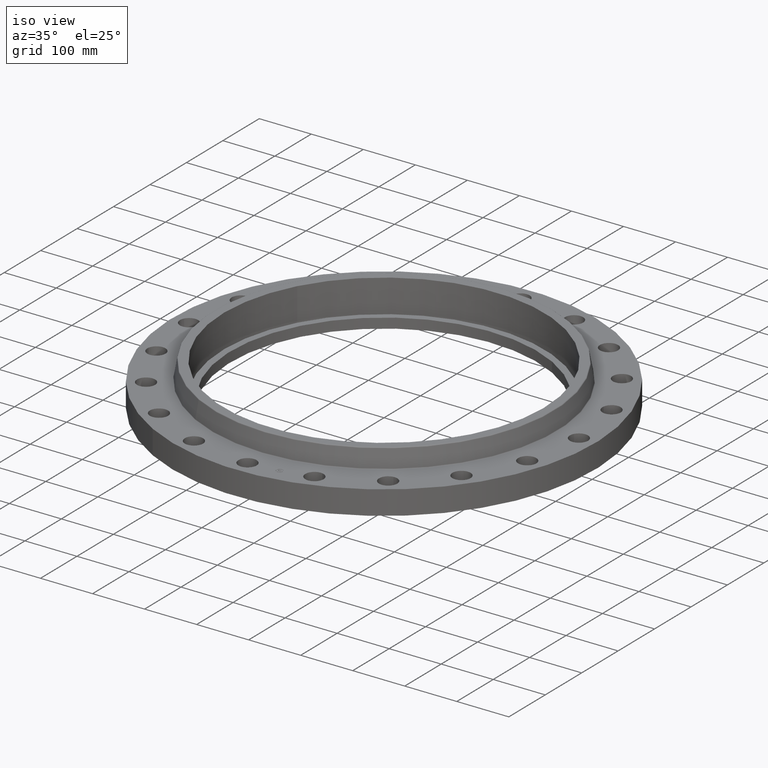
[diagram: clean part render]
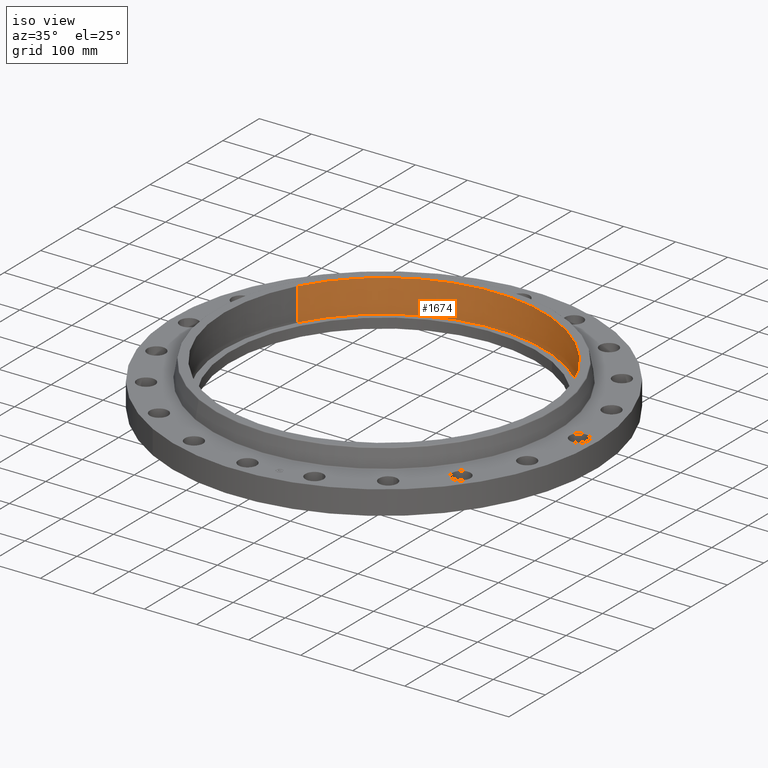
[diagram: same view with one face highlighted and labeled with its STEP entity id]
A machine part, iso view. The second image highlights one B-rep face of the part: STEP entity #1674.
In plain terms, the highlighted cylindrical surface (partial cylindrical patch) has radius 307.975 mm, axis along (0, 0, -1).
Its self-contained STEP definition (entity closure, byte-faithful):
#42=AXIS2_PLACEMENT_3D('Circle Axis2P3D',#40,#41,$) ;
#776=AXIS2_PLACEMENT_3D('Circle Axis2P3D',#774,#775,$) ;
#1656=AXIS2_PLACEMENT_3D('Cylinder Axis2P3D',#1653,#1654,#1655) ;
#40=CARTESIAN_POINT('Axis2P3D Location',(1.39870617276E-016,1.04902962957E-016,0.690000000003)) ;
#44=CARTESIAN_POINT('Vertex',(-10.640688563,5.8130346556,0.690000000003)) ;
#46=CARTESIAN_POINT('Vertex',(10.640688563,-5.8130346556,0.690000000003)) ;
#774=CARTESIAN_POINT('Axis2P3D Location',(2.79741234551E-016,0.,3.19000000001)) ;
#778=CARTESIAN_POINT('Vertex',(-10.640688563,5.8130346556,3.19000000001)) ;
#780=CARTESIAN_POINT('Vertex',(10.640688563,-5.8130346556,3.19000000001)) ;
#1653=CARTESIAN_POINT('Axis2P3D Location',(1.39870617276E-016,1.04902962957E-016,3.18606299214)) ;
#1658=CARTESIAN_POINT('Line Origine',(-10.640688563,5.8130346556,1.94000000001)) ;
#1663=CARTESIAN_POINT('Line Origine',(10.640688563,-5.8130346556,1.94000000001)) ;
#41=DIRECTION('Axis2P3D Direction',(0.,0.,-0.0393700787402)) ;
#775=DIRECTION('Axis2P3D Direction',(0.,0.,-0.0393700787402)) ;
#1654=DIRECTION('Axis2P3D Direction',(0.,0.,-0.0393700787402)) ;
#1655=DIRECTION('Axis2P3D XDirection',(0.0345504945626,-0.0188750212049,0.)) ;
#1659=DIRECTION('Vector Direction',(0.,0.,-0.0393700787402)) ;
#1664=DIRECTION('Vector Direction',(0.,0.,-0.0393700787402)) ;
#1660=VECTOR('Line Direction',#1659,0.0393700787402) ;
#1665=VECTOR('Line Direction',#1664,0.0393700787402) ;
#1669=ORIENTED_EDGE('',*,*,#782,.F.) ;
#1670=ORIENTED_EDGE('',*,*,#1662,.F.) ;
#1671=ORIENTED_EDGE('',*,*,#48,.T.) ;
#1672=ORIENTED_EDGE('',*,*,#1667,.T.) ;
#1674=ADVANCED_FACE('PartBody',(#1673),#1657,.F.) ;
#43=CIRCLE('generated circle',#42,12.125) ;
#777=CIRCLE('generated circle',#776,12.125) ;
#1657=CYLINDRICAL_SURFACE('generated cylinder',#1656,12.125) ;
#48=EDGE_CURVE('',#45,#47,#43,.T.) ;
#782=EDGE_CURVE('',#779,#781,#777,.T.) ;
#1662=EDGE_CURVE('',#45,#779,#1661,.F.) ;
#1667=EDGE_CURVE('',#47,#781,#1666,.F.) ;
#1668=EDGE_LOOP('',(#1669,#1670,#1671,#1672)) ;
#1673=FACE_OUTER_BOUND('',#1668,.T.) ;
#1661=LINE('Line',#1658,#1660) ;
#1666=LINE('Line',#1663,#1665) ;
#45=VERTEX_POINT('',#44) ;
#47=VERTEX_POINT('',#46) ;
#779=VERTEX_POINT('',#778) ;
#781=VERTEX_POINT('',#780) ;